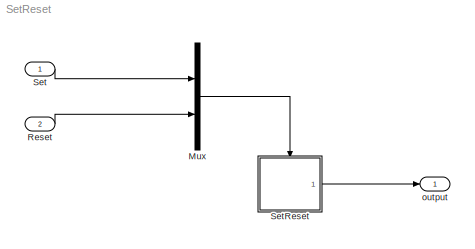
MODEL SetReset
KIND model
BLOCK [Mux] Mux
  DisplayOption = bar
  Inputs = 2
  Ports = [2, 1]
BLOCK [Inport] Reset
  IconDisplay = Port number
  LatchInput = off
  Port = 2
BLOCK [Inport] Set
  IconDisplay = Port number
  LatchInput = off
  Port = 1
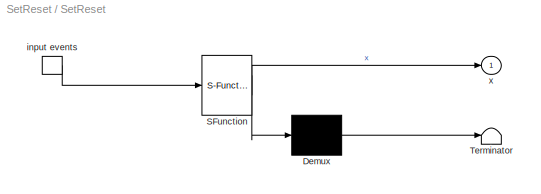
BLOCK [SubSystem] SetReset
  MaskDescription = Stateflow diagram
  MaskDisplay = plot(sf('Private','sfblk','xIcon'),sf('Private','sfblk','yIcon'));text(0.5,0,sf('Private', 'sfblk', 'tIcon'),'HorizontalAl','Center','VerticalAl','Bottom');
  MaskIconFrame = off
  MaskIconOpaque = off
  MaskIconRotate = none
  MaskIconUnits = autoscale
  MaskSelfModifiable = on
  MaskType = Stateflow
  MinAlgLoopOccurrences = off
  Ports = [0, 1, 0, 1]
  RTWSystemCode = Auto
  TreatAsAtomicUnit = off
BLOCK [Demux] SetReset/ Demux 
  Outputs = 1
  Ports = [1, 1]
BLOCK [S-Function] SetReset/ SFunction 
  FunctionName = sf_sfun
  PortCounts = [1 2]
  Ports = [1, 2]
  Tag = Stateflow S-Function SetReset 1
BLOCK [Terminator] SetReset/ Terminator 
BLOCK [TriggerPort] SetReset/ input events 
  Ports = [0, 1]
  ShowOutputPort = on
BLOCK [Outport] SetReset/x
  IconDisplay = Port number
BLOCK [Outport] output
  BusOutputAsStruct = off
  IconDisplay = Port number
LINE Mux:1 -> SetReset:trigger
LINE Reset:1 -> Mux:2
LINE Set:1 -> Mux:1
LINE SetReset/ Demux :1 -> SetReset/ Terminator :1
LINE SetReset/ SFunction :1 -> SetReset/ Demux :1
LINE SetReset/ SFunction :2 -> SetReset/x:1
LINE SetReset/ input events :1 -> SetReset/ SFunction :1
LINE SetReset:1 -> output:1
CHART SetReset states=2 transitions=3
  STATE_LABEL 'Off/\\nen:x=0'
  STATE_LABEL 'On/\\nen:x=1'
